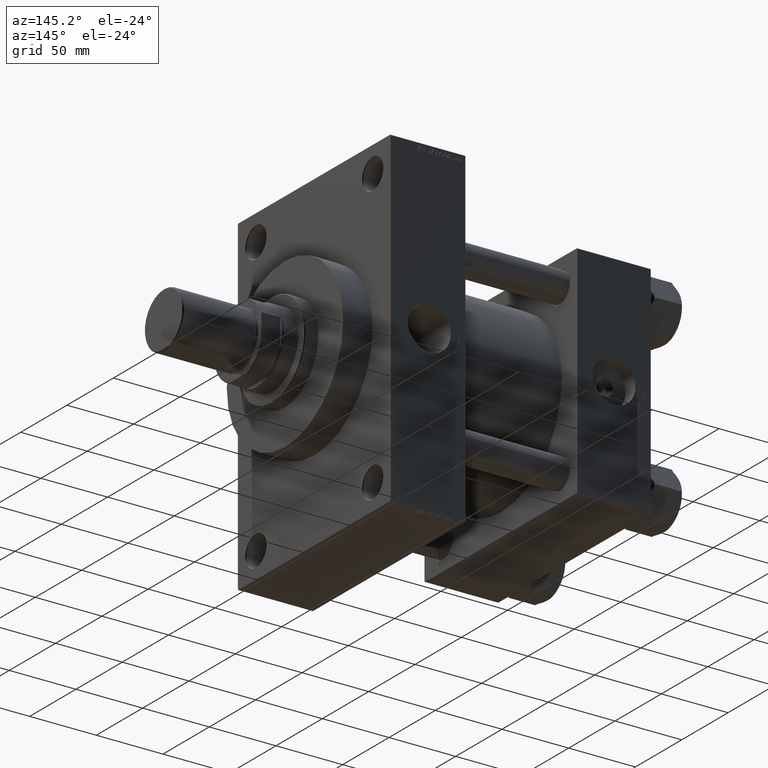
[diagram: clean part render]
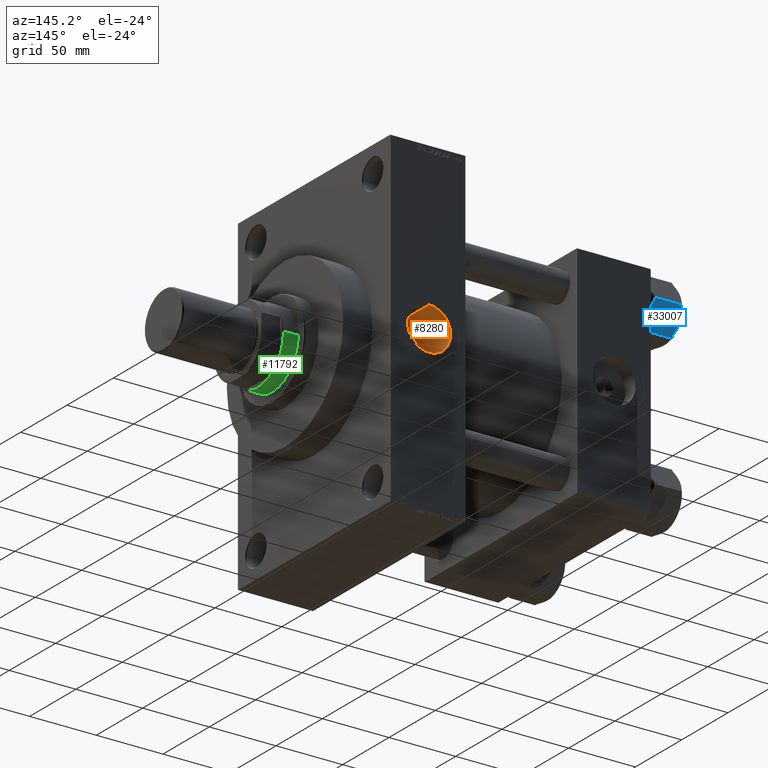
[diagram: same view with three faces highlighted in distinct colors, each labeled with its STEP entity id]
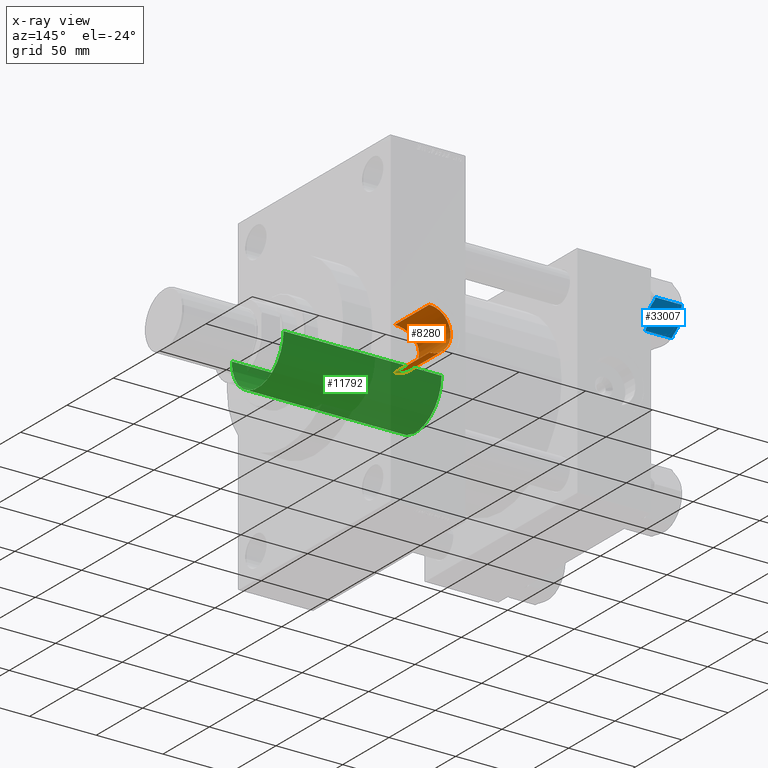
[diagram: x-ray of the same camera — body ghosted, the three highlighted faces saturated]
A machine part, auxiliary view with three faces highlighted in distinct colors.
The next image is the same camera in x-ray (body ghosted, the three faces saturated) — at least one of them is partly hidden behind the body in this view.
Their STEP definitions:

[orange] entity #8280 — the highlighted cylindrical surface (edge-blend (fillet) strip) has radius 16.12 mm, axis along (0, 1, 0).
#62 = CARTESIAN_POINT ( 'NONE',  ( 151.5465496410647006, 47.46568505099966018, 7.157525545048932791 ) ) ;
#315 = CARTESIAN_POINT ( 'NONE',  ( 163.3524938735407090, 45.28674343141022263, 15.90983575821539731 ) ) ;
#562 = CARTESIAN_POINT ( 'NONE',  ( 149.9839973528865187, 47.96476851448112910, 2.116103517140078605 ) ) ;
#1698 = ORIENTED_EDGE ( 'NONE', *, *, #38672, .F. ) ;
#2201 = ORIENTED_EDGE ( 'NONE', *, *, #9981, .F. ) ;
#2474 = CARTESIAN_POINT ( 'NONE',  ( 166.0000000000000000, 45.21222843435170802, -16.11999999999998323 ) ) ;
#3624 = CARTESIAN_POINT ( 'NONE',  ( 154.9729960168680520, 46.53613371662171261, 11.77001313185807696 ) ) ;
#3870 = CARTESIAN_POINT ( 'NONE',  ( 150.2974926996737111, 47.86130592640212456, 3.683696948053562181 ) ) ;
#4117 = CARTESIAN_POINT ( 'NONE',  ( 161.8074252609683867, 45.40341130741265374, 15.57423434075315960 ) ) ;
#5255 = DIRECTION ( 'NONE',  ( 0.000000000000000000, 0.000000000000000000, 1.000000000000000000 ) ) ;
#7149 = CARTESIAN_POINT ( 'NONE',  ( 163.8745383798636226, 45.25909137708124774, 15.98805040542519684 ) ) ;
#7376 = CARTESIAN_POINT ( 'NONE',  ( 166.0000000000000000, 45.21222843435170802, 16.11999999999998678 ) ) ;
#7397 = CARTESIAN_POINT ( 'NONE',  ( 151.3185449540537206, 47.53581322684393484, -6.677487908854875087 ) ) ;
#7623 = LINE ( 'NONE', #18503, #41864 ) ;
#7645 = CARTESIAN_POINT ( 'NONE',  ( 149.9058362201072327, 47.99130353165979557, -1.058319626694738114 ) ) ;
#7889 = CARTESIAN_POINT ( 'NONE',  ( 155.3632917927016308, 46.44487933368246502, 12.12408673889176924 ) ) ;
#8280 = ADVANCED_FACE ( 'NONE', ( #12819 ), #46671, .F. ) ;
#9746 = DIRECTION ( 'NONE',  ( 0.000000000000000000, 1.000000000000000000, 0.000000000000000000 ) ) ;
#9981 = EDGE_CURVE ( 'NONE', #43983, #25137, #7623, .T. ) ;
#10937 = CARTESIAN_POINT ( 'NONE',  ( 157.4569596800585032, 46.01029874597351466, -13.68007339625154728 ) ) ;
#11182 = CARTESIAN_POINT ( 'NONE',  ( 153.1888455555987605, 46.98894011064698617, -9.839718336392543563 ) ) ;
#11429 = CARTESIAN_POINT ( 'NONE',  ( 150.7381393572470643, 47.71842993095834373, 5.216347335900344717 ) ) ;
#11687 = CARTESIAN_POINT ( 'NONE',  ( 153.8631909320997124, 46.80740360391521193, 10.66052388589844035 ) ) ;
#12796 = LINE ( 'NONE', #32717, #13839 ) ;
#12819 = FACE_OUTER_BOUND ( 'NONE', #30710, .T. ) ;
#13339 = CARTESIAN_POINT ( 'NONE',  ( 160.7796187449391141, 45.50238654049800857, -15.28772570455068802 ) ) ;
#13839 = VECTOR ( 'NONE', #21126, 1000.000000000000000 ) ;
#15225 = CARTESIAN_POINT ( 'NONE',  ( 156.6006488211953922, 46.17696059733695790, 13.10648757866691128 ) ) ;
#17146 = EDGE_CURVE ( 'NONE', #38157, #43120, #12796, .T. ) ;
#18503 = CARTESIAN_POINT ( 'NONE',  ( 166.0000000000000000, -45.59424525090854985, 16.11999999999998678 ) ) ;
#19027 = CARTESIAN_POINT ( 'NONE',  ( 150.4026700797474803, 47.82660125764998327, -4.206572888329076498 ) ) ;
#19525 = CARTESIAN_POINT ( 'NONE',  ( 152.3197166543445746, 47.23575604300949493, 8.542920188155509464 ) ) ;
#21126 = DIRECTION ( 'NONE',  ( -0.000000000000000000, 1.000000000000000000, -0.000000000000000000 ) ) ;
#22102 = AXIS2_PLACEMENT_3D ( 'NONE', #44836, #9746, #32471 ) ;
#22563 = AXIS2_PLACEMENT_3D ( 'NONE', #27499, #28228, #5255 ) ;
#22814 = CARTESIAN_POINT ( 'NONE',  ( 149.8798839531557121, 48.00003897239771078, -0.5264550590852290490 ) ) ;
#23064 = CARTESIAN_POINT ( 'NONE',  ( 164.9293974465997508, 45.22183051367630924, 16.09313993718262381 ) ) ;
#23307 = CARTESIAN_POINT ( 'NONE',  ( 157.9043783635674174, 45.92339098305281198, 13.97887646589332000 ) ) ;
#23554 = CARTESIAN_POINT ( 'NONE',  ( 166.0000000000000000, 45.21222843435170802, 16.11999999999998678 ) ) ;
#23625 = CARTESIAN_POINT ( 'NONE',  ( 166.0000000000000000, 45.21222843435170802, -16.11999999999998323 ) ) ;
#24460 = CARTESIAN_POINT ( 'NONE',  ( 165.4712480185175707, 45.21222843435171512, -16.11999999999998678 ) ) ;
#25137 = VERTEX_POINT ( 'NONE', #32209 ) ;
#26343 = CARTESIAN_POINT ( 'NONE',  ( 151.5477535467405232, 47.46531828971838252, -7.159949981054559487 ) ) ;
#26602 = CARTESIAN_POINT ( 'NONE',  ( 152.0464374081228698, 47.31586332091972480, -8.088906123297569195 ) ) ;
#26715 = B_SPLINE_CURVE_WITH_KNOTS ( 'NONE', 3,
 ( #2474, #24460, #32028, #39852, #32274, #47934, #13339, #28743, #36550, #45537, #10937, #27098, #31133, #34155, #11182, #41995, #26602, #26343, #7397, #38942, #19027, #49821, #42242, #7645, #22814, #41745, #562, #3870, #38191, #11429, #27345, #34897, #62, #46278, #19525, #30878, #11687, #3624, #7889, #34403, #15225, #23307, #38699, #30632, #46028, #4117, #26849, #315, #7149, #23064, #38441, #23554 ),
 .UNSPECIFIED., .F., .F.,
 ( 4, 2, 2, 2, 2, 2, 2, 2, 2, 2, 2, 2, 2, 2, 2, 2, 2, 2, 2, 2, 2, 2, 2, 2, 2, 4 ),
 ( 0.008072471951768512427, 0.009659768130675490394, 0.01124706430958246663, 0.01442165666739634103, 0.01600895284630331553, 0.01759624902521029349, 0.02077084138302430494, 0.02394543374083831985, 0.02553272991974532558, 0.02712002609865232783, 0.03029461845646632887, 0.03188191463537333459, 0.03346921081428035072, 0.03664380317209436216, 0.03823109935100137136, 0.03981839552990838749, 0.04140569170881540362, 0.04299298788772240587, 0.04616758024553641038, 0.04775487642444338487, 0.04934217260335034549, 0.05251676496116423898, 0.05410406114007113021, 0.05569135731897803532, 0.05727865349788492655, 0.05886594967679183166 ),
 .UNSPECIFIED. ) ;
#26849 = CARTESIAN_POINT ( 'NONE',  ( 162.3189372732880713, 45.35890281665471946, 15.70292774437432826 ) ) ;
#27098 = CARTESIAN_POINT ( 'NONE',  ( 156.1537537710904928, 46.26411110075127908, -12.80624922994972614 ) ) ;
#27345 = CARTESIAN_POINT ( 'NONE',  ( 150.9167684594274021, 47.66143745959295330, 5.711994629829681536 ) ) ;
#27499 = CARTESIAN_POINT ( 'NONE',  ( 166.0000000000000000, -45.59424525090854985, 4.635293498561508778E-15 ) ) ;
#28228 = DIRECTION ( 'NONE',  ( -0.000000000000000000, 1.000000000000000000, -0.000000000000000000 ) ) ;
#28743 = CARTESIAN_POINT ( 'NONE',  ( 159.3189311792716296, 45.70065186291642334, -14.67977703608380402 ) ) ;
#30632 = CARTESIAN_POINT ( 'NONE',  ( 160.2912727904896997, 45.56864012974241973, 15.08458873029388059 ) ) ;
#30710 = EDGE_LOOP ( 'NONE', ( #1698, #37058, #36816, #2201 ) ) ;
#30878 = CARTESIAN_POINT ( 'NONE',  ( 153.1996861589872196, 46.98592577120923153, 9.854710376567441088 ) ) ;
#31133 = CARTESIAN_POINT ( 'NONE',  ( 155.3457327124579308, 46.44496458936118444, -12.14317475332639695 ) ) ;
#32028 = CARTESIAN_POINT ( 'NONE',  ( 164.9420888695262022, 45.22150675515200646, -16.09404916668411900 ) ) ;
#32209 = CARTESIAN_POINT ( 'NONE',  ( 166.0000000000000000, 82.29999999999998295, 16.11999999999998678 ) ) ;
#32274 = CARTESIAN_POINT ( 'NONE',  ( 163.3505610112347313, 45.28680618229889632, -15.90966520802014550 ) ) ;
#32471 = DIRECTION ( 'NONE',  ( 0.000000000000000000, 0.000000000000000000, 1.000000000000000000 ) ) ;
#32717 = CARTESIAN_POINT ( 'NONE',  ( 166.0000000000000000, -45.59424525090854985, -16.11999999999998323 ) ) ;
#33884 = DIRECTION ( 'NONE',  ( -0.000000000000000000, 1.000000000000000000, -0.000000000000000000 ) ) ;
#34155 = CARTESIAN_POINT ( 'NONE',  ( 153.8522625229029188, 46.81013618955937972, -10.64906468717991750 ) ) ;
#34403 = CARTESIAN_POINT ( 'NONE',  ( 156.1792571105335412, 46.26482730686587530, 12.79398490847842851 ) ) ;
#34897 = CARTESIAN_POINT ( 'NONE',  ( 151.3209732561079477, 47.53506677344698517, 6.682584096727040013 ) ) ;
#36550 = CARTESIAN_POINT ( 'NONE',  ( 158.8380690689219250, 45.77366035875839145, -14.45131776106539867 ) ) ;
#36816 = ORIENTED_EDGE ( 'NONE', *, *, #37979, .T. ) ;
#37058 = ORIENTED_EDGE ( 'NONE', *, *, #17146, .T. ) ;
#37979 = EDGE_CURVE ( 'NONE', #43120, #25137, #46293, .T. ) ;
#38157 = VERTEX_POINT ( 'NONE', #23625 ) ;
#38191 = CARTESIAN_POINT ( 'NONE',  ( 150.4287693951167455, 47.81827461700624582, 4.203742054064747435 ) ) ;
#38441 = CARTESIAN_POINT ( 'NONE',  ( 165.4645506620107369, 45.21222843435172933, 16.11999999999999034 ) ) ;
#38672 = EDGE_CURVE ( 'NONE', #38157, #43983, #26715, .T. ) ;
#38699 = CARTESIAN_POINT ( 'NONE',  ( 158.8258617833446351, 45.76764191912390345, 14.47432467879505857 ) ) ;
#38942 = CARTESIAN_POINT ( 'NONE',  ( 150.7095147537594642, 47.72625908816331020, -5.212842707264640829 ) ) ;
#39852 = CARTESIAN_POINT ( 'NONE',  ( 163.8829418995424874, 45.25867245343138734, -15.98923573967539902 ) ) ;
#41745 = CARTESIAN_POINT ( 'NONE',  ( 149.8802332607233438, 47.99992166327545817, 1.063534410895884186 ) ) ;
#41864 = VECTOR ( 'NONE', #33884, 1000.000000000000000 ) ;
#41995 = CARTESIAN_POINT ( 'NONE',  ( 152.3167081115507528, 47.23664235035570158, -8.537842636167466637 ) ) ;
#42242 = CARTESIAN_POINT ( 'NONE',  ( 150.0117973709634498, 47.95587273943641549, -2.125917425284639783 ) ) ;
#43120 = VERTEX_POINT ( 'NONE', #44494 ) ;
#43983 = VERTEX_POINT ( 'NONE', #7376 ) ;
#44494 = CARTESIAN_POINT ( 'NONE',  ( 166.0000000000000000, 82.29999999999998295, -16.11999999999998323 ) ) ;
#44836 = CARTESIAN_POINT ( 'NONE',  ( 166.0000000000000000, 82.29999999999998295, 4.635293498561508778E-15 ) ) ;
#45537 = CARTESIAN_POINT ( 'NONE',  ( 157.9066746589799095, 45.92860375684237084, -13.95105460591491031 ) ) ;
#46028 = CARTESIAN_POINT ( 'NONE',  ( 160.7949769446375399, 45.50806895941176577, 15.26571954531478603 ) ) ;
#46278 = CARTESIAN_POINT ( 'NONE',  ( 152.0451612480137555, 47.31623986197998732, 8.086709751950831304 ) ) ;
#46293 = CIRCLE ( 'NONE', #22102, 16.11999999999998678 ) ;
#46671 = CYLINDRICAL_SURFACE ( 'NONE', #22563, 16.11999999999998678 ) ;
#47934 = CARTESIAN_POINT ( 'NONE',  ( 161.7869820387701054, 45.39618782776045691, -15.59599870493266316 ) ) ;
#49821 = CARTESIAN_POINT ( 'NONE',  ( 150.0908315081493924, 47.92950671461532153, -2.651819549746063487 ) ) ;

[blue] entity #33007 — the highlighted planar face has unit normal (-0, -0.866, 0.5).
#101 = CARTESIAN_POINT ( 'NONE',  ( 16.02284832181305418, 9.694551084289217968, -24.00000000000000355 ) ) ;
#196 = CARTESIAN_POINT ( 'NONE',  ( 17.17703765647818770, 7.695436515095090968, -0.09483449834988741389 ) ) ;
#354 = CARTESIAN_POINT ( 'NONE',  ( 11.77388873931089996, 17.05396496048960131, -22.00000000000000000 ) ) ;
#1259 = CARTESIAN_POINT ( 'NONE',  ( 13.58342913161267163, 13.91974906267479639, -0.7123487060405462312 ) ) ;
#2848 = DIRECTION ( 'NONE',  ( 0.4999999999999998335, -0.8660254037844388186, 0.000000000000000000 ) ) ;
#3485 = VECTOR ( 'NONE', #16141, 999.9999999999998863 ) ;
#3755 = CARTESIAN_POINT ( 'NONE',  ( 19.94878361794604871, 2.894631684158897933, -1.393668941363769731 ) ) ;
#4530 = ORIENTED_EDGE ( 'NONE', *, *, #48713, .F. ) ;
#4629 = CARTESIAN_POINT ( 'NONE',  ( 16.98310883762008316, 8.031331082409137068, -24.00000000000000711 ) ) ;
#4738 = VERTEX_POINT ( 'NONE', #40988 ) ;
#7323 = VERTEX_POINT ( 'NONE', #15746 ) ;
#7774 = CARTESIAN_POINT ( 'NONE',  ( 18.12021770021053868, 6.061800758665617295, -0.3703068632035608765 ) ) ;
#8056 = VERTEX_POINT ( 'NONE', #25240 ) ;
#8277 = CARTESIAN_POINT ( 'NONE',  ( 20.65611126068912284, 1.669504269329972868, -2.000000000000000000 ) ) ;
#8498 = EDGE_CURVE ( 'NONE', #4738, #11357, #38789, .T. ) ;
#8602 = ORIENTED_EDGE ( 'NONE', *, *, #48842, .F. ) ;
#9054 = VECTOR ( 'NONE', #2848, 999.9999999999998863 ) ;
#10076 = CARTESIAN_POINT ( 'NONE',  ( 14.69400019531146562, 11.99618355493267252, -0.1908188403547868839 ) ) ;
#10661 = LINE ( 'NONE', #41474, #9054 ) ;
#11357 = VERTEX_POINT ( 'NONE', #37559 ) ;
#11917 = B_SPLINE_CURVE_WITH_KNOTS ( 'NONE', 3,
 ( #8277, #3755, #31014, #7774, #19159, #196, #15615, #31516, #46913, #12564 ),
 .UNSPECIFIED., .F., .F.,
 ( 4, 2, 2, 2, 4 ),
 ( 5.007809737635679592E-07, 0.004555175037830400120, 0.006832512166258719252, 0.007971180730472881421, 0.009109849294687041854 ),
 .UNSPECIFIED. ) ;
#12216 = CARTESIAN_POINT ( 'NONE',  ( 12.48121638205397055, 15.82883754566066514, -22.60633105863622916 ) ) ;
#12363 = VERTEX_POINT ( 'NONE', #13051 ) ;
#12564 = CARTESIAN_POINT ( 'NONE',  ( 16.21500000000001052, 9.361734614909781982, 0.000000000000000000 ) ) ;
#12686 = CARTESIAN_POINT ( 'NONE',  ( 20.65611126068912640, 1.669504269329968427, -22.00000000000000000 ) ) ;
#12907 = VECTOR ( 'NONE', #31170, 999.9999999999998863 ) ;
#12949 = ORIENTED_EDGE ( 'NONE', *, *, #30358, .F. ) ;
#13051 = CARTESIAN_POINT ( 'NONE',  ( 11.77388873931090352, 17.05396496048959776, -2.000000000000000000 ) ) ;
#13459 = EDGE_CURVE ( 'NONE', #31850, #21256, #46841, .T. ) ;
#13476 = EDGE_CURVE ( 'NONE', #8056, #16087, #22850, .T. ) ;
#14951 = ORIENTED_EDGE ( 'NONE', *, *, #36355, .F. ) ;
#15240 = ORIENTED_EDGE ( 'NONE', *, *, #8498, .T. ) ;
#15383 = LINE ( 'NONE', #23958, #3485 ) ;
#15615 = CARTESIAN_POINT ( 'NONE',  ( 16.98598932500589243, 8.026341931906367577, -0.05945867712356229379 ) ) ;
#15746 = CARTESIAN_POINT ( 'NONE',  ( 16.21500000000001052, 9.361734614909781982, 0.000000000000000000 ) ) ;
#15858 = B_SPLINE_CURVE_WITH_KNOTS ( 'NONE', 3,
 ( #24059, #4629, #42765, #24302, #47526, #43011, #35167, #12686 ),
 .UNSPECIFIED., .F., .F.,
 ( 4, 2, 2, 4 ),
 ( 0.009109849294687045324, 0.01366157320126712080, 0.01593743515455715853, 0.01821329710784719627 ),
 .UNSPECIFIED. ) ;
#16087 = VERTEX_POINT ( 'NONE', #45390 ) ;
#16094 = CARTESIAN_POINT ( 'NONE',  ( 10.81000000000000227, 18.72346922981957817, -22.00000000000000000 ) ) ;
#16141 = DIRECTION ( 'NONE',  ( -0.4999999999999998335, 0.8660254037844388186, 0.000000000000000000 ) ) ;
#16755 = VECTOR ( 'NONE', #38085, 1000.000000000000000 ) ;
#18094 = VERTEX_POINT ( 'NONE', #48749 ) ;
#18164 = EDGE_LOOP ( 'NONE', ( #14951, #15240, #21418, #4530, #27010, #31483, #8602, #12949, #37396, #18759 ) ) ;
#18759 = ORIENTED_EDGE ( 'NONE', *, *, #13459, .F. ) ;
#19159 = CARTESIAN_POINT ( 'NONE',  ( 17.74616263960890805, 6.709683128455898427, -0.2338220771833904310 ) ) ;
#19813 = CARTESIAN_POINT ( 'NONE',  ( 10.81000000000000227, 18.72346922981957817, -2.000000000000001776 ) ) ;
#21256 = VERTEX_POINT ( 'NONE', #35916 ) ;
#21418 = ORIENTED_EDGE ( 'NONE', *, *, #31739, .F. ) ;
#22850 = LINE ( 'NONE', #19813, #12907 ) ;
#23593 = CARTESIAN_POINT ( 'NONE',  ( 15.25296234352183333, 11.02803271472448365, -23.90516550165011722 ) ) ;
#23958 = CARTESIAN_POINT ( 'NONE',  ( 10.81000000000000227, 18.72346922981957817, -2.000000000000001776 ) ) ;
#24059 = CARTESIAN_POINT ( 'NONE',  ( 16.21500000000001052, 9.361734614909781982, -24.00000000000000000 ) ) ;
#24302 = CARTESIAN_POINT ( 'NONE',  ( 18.84657086838734941, 4.803720167144760467, -23.28765129395945266 ) ) ;
#24995 = CARTESIAN_POINT ( 'NONE',  ( 11.77388873931090352, 17.05396496048959776, -2.000000000000000000 ) ) ;
#25240 = CARTESIAN_POINT ( 'NONE',  ( 21.62000000000000810, -3.114209406997181913E-15, -2.000000000000001776 ) ) ;
#25313 = VECTOR ( 'NONE', #46135, 999.9999999999998863 ) ;
#25789 = VECTOR ( 'NONE', #33735, 1000.000000000000000 ) ;
#25882 = PLANE ( 'NONE',  #38175 ) ;
#26690 = CARTESIAN_POINT ( 'NONE',  ( 10.81000000000000227, 18.72346922981957817, -24.00000000000000000 ) ) ;
#27010 = ORIENTED_EDGE ( 'NONE', *, *, #44710, .F. ) ;
#27928 = B_SPLINE_CURVE_WITH_KNOTS ( 'NONE', 3,
 ( #29263, #28281, #10076, #1259, #48210, #36334, #33050, #24995 ),
 .UNSPECIFIED., .F., .F.,
 ( 4, 2, 2, 4 ),
 ( 0.009109849294687041854, 0.01366157320126711386, 0.01593743515455714813, 0.01821329710784718586 ),
 .UNSPECIFIED. ) ;
#28281 = CARTESIAN_POINT ( 'NONE',  ( 15.44689116237993254, 10.69213814741042512, 4.238552868060517319E-15 ) ) ;
#29263 = CARTESIAN_POINT ( 'NONE',  ( 16.21500000000001052, 9.361734614909781982, 0.000000000000000000 ) ) ;
#29655 = FACE_OUTER_BOUND ( 'NONE', #18164, .T. ) ;
#30358 = EDGE_CURVE ( 'NONE', #18094, #34664, #10661, .T. ) ;
#31014 = CARTESIAN_POINT ( 'NONE',  ( 19.22845374672207086, 4.142279619328373741, -0.8936198542777834541 ) ) ;
#31170 = DIRECTION ( 'NONE',  ( -0.4999999999999998335, 0.8660254037844388186, 0.000000000000000000 ) ) ;
#31483 = ORIENTED_EDGE ( 'NONE', *, *, #13476, .F. ) ;
#31490 = LINE ( 'NONE', #16094, #25313 ) ;
#31516 = CARTESIAN_POINT ( 'NONE',  ( 16.60104632518793366, 8.693082765609045026, -0.01197337667082005834 ) ) ;
#31739 = EDGE_CURVE ( 'NONE', #12363, #11357, #15383, .T. ) ;
#31850 = VERTEX_POINT ( 'NONE', #32505 ) ;
#32505 = CARTESIAN_POINT ( 'NONE',  ( 11.77388873931089996, 17.05396496048960131, -22.00000000000000000 ) ) ;
#33007 = ADVANCED_FACE ( 'NONE', ( #29655 ), #25882, .F. ) ;
#33050 = CARTESIAN_POINT ( 'NONE',  ( 12.12795923008834009, 16.44069688100221782, -1.696485868030855881 ) ) ;
#33735 = DIRECTION ( 'NONE',  ( -0.000000000000000000, -0.000000000000000000, 1.000000000000000000 ) ) ;
#34047 = LINE ( 'NONE', #44914, #16755 ) ;
#34664 = VERTEX_POINT ( 'NONE', #43776 ) ;
#35167 = CARTESIAN_POINT ( 'NONE',  ( 20.30204076991168094, 2.282772348817346142, -22.30351413196914123 ) ) ;
#35916 = CARTESIAN_POINT ( 'NONE',  ( 16.21500000000001052, 9.361734614909781982, -24.00000000000000000 ) ) ;
#36334 = CARTESIAN_POINT ( 'NONE',  ( 12.48753218109486163, 15.81789826083144668, -1.417879168323222583 ) ) ;
#36355 = EDGE_CURVE ( 'NONE', #4738, #31850, #31490, .T. ) ;
#37396 = ORIENTED_EDGE ( 'NONE', *, *, #48305, .F. ) ;
#37559 = CARTESIAN_POINT ( 'NONE',  ( 10.81000000000000050, 18.72346922981957817, -2.000000000000001776 ) ) ;
#37990 = CARTESIAN_POINT ( 'NONE',  ( 10.81000000000000227, 18.72346922981957817, -24.00000000000000000 ) ) ;
#38085 = DIRECTION ( 'NONE',  ( -0.000000000000000000, -0.000000000000000000, 1.000000000000000000 ) ) ;
#38175 = AXIS2_PLACEMENT_3D ( 'NONE', #37990, #49107, #41537 ) ;
#38735 = CARTESIAN_POINT ( 'NONE',  ( 14.68383736039111298, 12.01378610136367264, -23.76617792281661323 ) ) ;
#38789 = LINE ( 'NONE', #26690, #25789 ) ;
#38981 = CARTESIAN_POINT ( 'NONE',  ( 16.21500000000001052, 9.361734614909781982, -24.00000000000000000 ) ) ;
#40988 = CARTESIAN_POINT ( 'NONE',  ( 10.81000000000000050, 18.72346922981957817, -22.00000000000000000 ) ) ;
#41474 = CARTESIAN_POINT ( 'NONE',  ( 10.81000000000000227, 18.72346922981957817, -22.00000000000000000 ) ) ;
#41537 = DIRECTION ( 'NONE',  ( 0.4999999999999997780, -0.8660254037844387076, 0.000000000000000000 ) ) ;
#42765 = CARTESIAN_POINT ( 'NONE',  ( 17.73599980468855009, 6.727285674886885225, -23.80918115964520965 ) ) ;
#42783 = CARTESIAN_POINT ( 'NONE',  ( 15.44401067499412683, 10.69712729791320349, -23.94054132287644165 ) ) ;
#43011 = CARTESIAN_POINT ( 'NONE',  ( 19.94246781890515763, 2.905570968988116398, -22.58212083167677520 ) ) ;
#43034 = CARTESIAN_POINT ( 'NONE',  ( 15.82895367481208737, 10.03038646421052071, -23.98802662332919056 ) ) ;
#43776 = CARTESIAN_POINT ( 'NONE',  ( 21.62000000000000810, -3.114209406997181913E-15, -22.00000000000000000 ) ) ;
#44710 = EDGE_CURVE ( 'NONE', #16087, #7323, #11917, .T. ) ;
#44914 = CARTESIAN_POINT ( 'NONE',  ( 21.62000000000000810, -3.114209406997181913E-15, -24.00000000000000000 ) ) ;
#45390 = CARTESIAN_POINT ( 'NONE',  ( 20.65611126068912284, 1.669504269329972868, -2.000000000000000000 ) ) ;
#46135 = DIRECTION ( 'NONE',  ( 0.4999999999999998335, -0.8660254037844388186, 0.000000000000000000 ) ) ;
#46841 = B_SPLINE_CURVE_WITH_KNOTS ( 'NONE', 3,
 ( #354, #12216, #49854, #49608, #38735, #23593, #42783, #43034, #101, #38981 ),
 .UNSPECIFIED., .F., .F.,
 ( 4, 2, 2, 2, 4 ),
 ( 5.007809737605685096E-07, 0.004555175037830401855, 0.006832512166258726191, 0.007971180730472884890, 0.009109849294687045324 ),
 .UNSPECIFIED. ) ;
#46913 = CARTESIAN_POINT ( 'NONE',  ( 16.40715167818695619, 9.028918145530347772, 4.370219433972603677E-15 ) ) ;
#47526 = CARTESIAN_POINT ( 'NONE',  ( 19.21365948880452379, 4.167904025701849591, -23.07491496110390727 ) ) ;
#48210 = CARTESIAN_POINT ( 'NONE',  ( 13.21634051119549902, 14.55556520411771615, -0.9250850388960966120 ) ) ;
#48305 = EDGE_CURVE ( 'NONE', #21256, #18094, #15858, .T. ) ;
#48713 = EDGE_CURVE ( 'NONE', #7323, #12363, #27928, .T. ) ;
#48749 = CARTESIAN_POINT ( 'NONE',  ( 20.65611126068912640, 1.669504269329968427, -22.00000000000000000 ) ) ;
#48842 = EDGE_CURVE ( 'NONE', #34664, #8056, #34047, .T. ) ;
#49107 = DIRECTION ( 'NONE',  ( -0.8660254037844388186, -0.4999999999999998335, 0.000000000000000000 ) ) ;
#49608 = CARTESIAN_POINT ( 'NONE',  ( 14.30978229978948235, 12.66166847115394845, -23.62969313679644756 ) ) ;
#49854 = CARTESIAN_POINT ( 'NONE',  ( 13.20154625327794484, 14.58118961049119022, -23.10638014572221266 ) ) ;

[green] entity #11792 — the highlighted cylindrical surface (partial cylindrical patch) has radius 28 mm, axis along (-1, 0, 0).
#624 = CARTESIAN_POINT ( 'NONE',  ( 28.00000000000000000, 3.429011037612589276E-15, 183.0000000000000000 ) ) ;
#2799 = VERTEX_POINT ( 'NONE', #24590 ) ;
#2987 = DIRECTION ( 'NONE',  ( -0.000000000000000000, -0.000000000000000000, -1.000000000000000000 ) ) ;
#3320 = CARTESIAN_POINT ( 'NONE',  ( -28.00000000000000000, 0.000000000000000000, 183.0000000000000000 ) ) ;
#3381 = CARTESIAN_POINT ( 'NONE',  ( 0.000000000000000000, 0.000000000000000000, 64.00000000000000000 ) ) ;
#4031 = AXIS2_PLACEMENT_3D ( 'NONE', #10006, #48627, #20645 ) ;
#5906 = DIRECTION ( 'NONE',  ( -1.000000000000000000, 0.000000000000000000, 0.000000000000000000 ) ) ;
#10006 = CARTESIAN_POINT ( 'NONE',  ( 0.000000000000000000, 0.000000000000000000, 182.4999999999999716 ) ) ;
#11330 = VERTEX_POINT ( 'NONE', #45402 ) ;
#11792 = ADVANCED_FACE ( 'NONE', ( #21068 ), #32170, .T. ) ;
#11939 = EDGE_CURVE ( 'NONE', #2799, #24037, #48379, .T. ) ;
#12415 = EDGE_CURVE ( 'NONE', #30647, #11330, #49985, .T. ) ;
#12753 = ORIENTED_EDGE ( 'NONE', *, *, #34560, .T. ) ;
#14422 = CARTESIAN_POINT ( 'NONE',  ( -28.00000000000000000, 0.000000000000000000, 182.4999999999999716 ) ) ;
#14930 = VECTOR ( 'NONE', #42438, 1000.000000000000000 ) ;
#15926 = LINE ( 'NONE', #3320, #14930 ) ;
#17717 = AXIS2_PLACEMENT_3D ( 'NONE', #24605, #28144, #5906 ) ;
#20645 = DIRECTION ( 'NONE',  ( 1.000000000000000000, 0.000000000000000000, 0.000000000000000000 ) ) ;
#21029 = CARTESIAN_POINT ( 'NONE',  ( -28.00000000000000000, 0.000000000000000000, 64.00000000000000000 ) ) ;
#21068 = FACE_OUTER_BOUND ( 'NONE', #48412, .T. ) ;
#24037 = VERTEX_POINT ( 'NONE', #21029 ) ;
#24590 = CARTESIAN_POINT ( 'NONE',  ( 28.00000000000000000, 3.429011037612589276E-15, 64.00000000000000000 ) ) ;
#24605 = CARTESIAN_POINT ( 'NONE',  ( 0.000000000000000000, 0.000000000000000000, 183.0000000000000000 ) ) ;
#24999 = AXIS2_PLACEMENT_3D ( 'NONE', #3381, #25845, #37187 ) ;
#25845 = DIRECTION ( 'NONE',  ( 0.000000000000000000, 0.000000000000000000, 1.000000000000000000 ) ) ;
#28144 = DIRECTION ( 'NONE',  ( -0.000000000000000000, -0.000000000000000000, -1.000000000000000000 ) ) ;
#30647 = VERTEX_POINT ( 'NONE', #14422 ) ;
#32170 = CYLINDRICAL_SURFACE ( 'NONE', #17717, 28.00000000000000000 ) ;
#34560 = EDGE_CURVE ( 'NONE', #11330, #2799, #45144, .T. ) ;
#35273 = ORIENTED_EDGE ( 'NONE', *, *, #12415, .T. ) ;
#37187 = DIRECTION ( 'NONE',  ( 1.000000000000000000, 0.000000000000000000, 0.000000000000000000 ) ) ;
#39866 = VECTOR ( 'NONE', #2987, 1000.000000000000000 ) ;
#39971 = EDGE_CURVE ( 'NONE', #30647, #24037, #15926, .T. ) ;
#42438 = DIRECTION ( 'NONE',  ( -0.000000000000000000, -0.000000000000000000, -1.000000000000000000 ) ) ;
#44891 = ORIENTED_EDGE ( 'NONE', *, *, #39971, .F. ) ;
#45144 = LINE ( 'NONE', #624, #39866 ) ;
#45402 = CARTESIAN_POINT ( 'NONE',  ( 28.00000000000000000, 3.429011037612589276E-15, 182.4999999999999716 ) ) ;
#48184 = ORIENTED_EDGE ( 'NONE', *, *, #11939, .T. ) ;
#48379 = CIRCLE ( 'NONE', #24999, 28.00000000000000000 ) ;
#48412 = EDGE_LOOP ( 'NONE', ( #35273, #12753, #48184, #44891 ) ) ;
#48627 = DIRECTION ( 'NONE',  ( 0.000000000000000000, 0.000000000000000000, -1.000000000000000000 ) ) ;
#49985 = CIRCLE ( 'NONE', #4031, 28.00000000000000000 ) ;